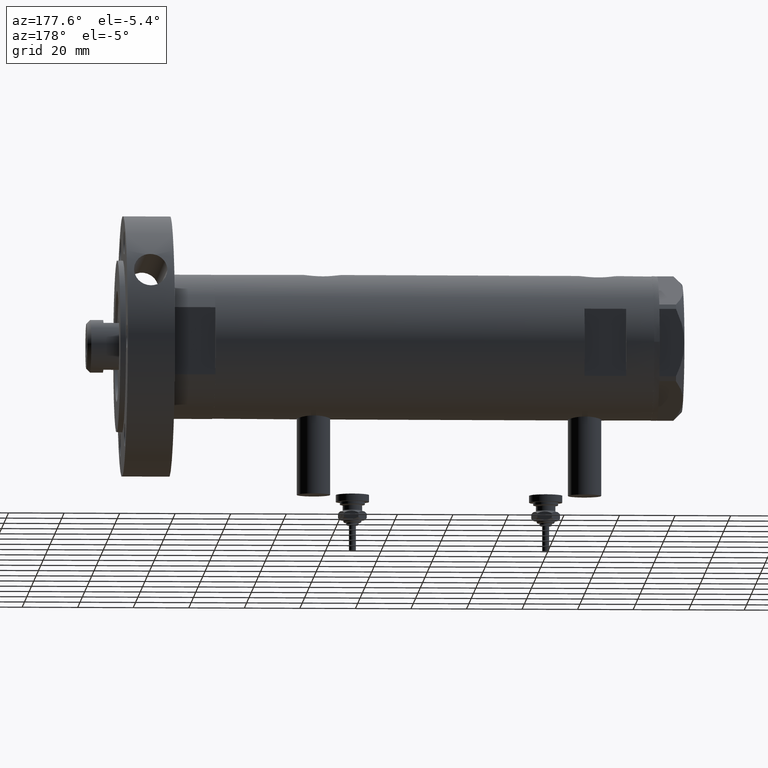
[diagram: clean part render]
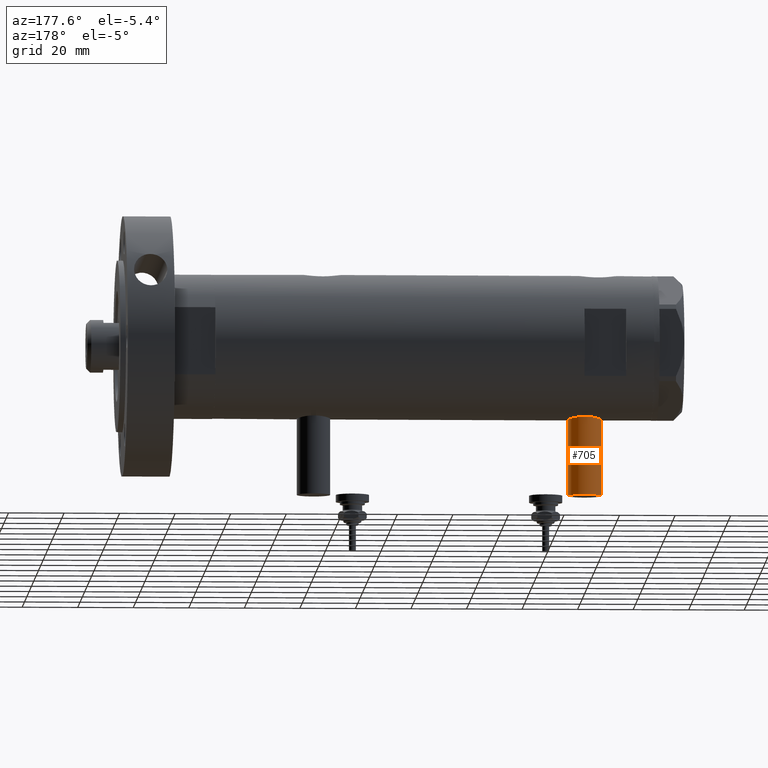
[diagram: same view with one face highlighted and labeled with its STEP entity id]
A machine part, auxiliary view. The second image highlights one B-rep face of the part: STEP entity #705.
In plain terms, the highlighted cylindrical surface (edge-blend (fillet) strip) has radius 6 mm, axis along (0, 0, 1).
Its self-contained STEP definition (entity closure, byte-faithful):
#286 = CARTESIAN_POINT ( 'NONE',  ( -53.40000000000000568, 0.000000000000000000, 48.95000000000000995 ) ) ;
#335 = VERTEX_POINT ( 'NONE', #5448 ) ;
#360 = CYLINDRICAL_SURFACE ( 'NONE', #5297, 5.999999999999998224 ) ;
#679 = CARTESIAN_POINT ( 'NONE',  ( -24.80000000000000426, 0.000000000000000000, 54.95000000000000284 ) ) ;
#705 = ADVANCED_FACE ( 'NONE', ( #5354 ), #360, .T. ) ;
#984 = DIRECTION ( 'NONE',  ( 1.000000000000000000, -0.000000000000000000, -0.000000000000000000 ) ) ;
#1064 = CARTESIAN_POINT ( 'NONE',  ( -53.40000000000000568, 0.000000000000000000, 48.95000000000000995 ) ) ;
#1437 = DIRECTION ( 'NONE',  ( -1.000000000000000000, 0.000000000000000000, 0.000000000000000000 ) ) ;
#1558 = DIRECTION ( 'NONE',  ( 1.000000000000000000, -0.000000000000000000, -0.000000000000000000 ) ) ;
#1568 = VERTEX_POINT ( 'NONE', #7670 ) ;
#1668 = AXIS2_PLACEMENT_3D ( 'NONE', #679, #1437, #3905 ) ;
#1734 = CIRCLE ( 'NONE', #5455, 5.999999999999998224 ) ;
#2001 = EDGE_CURVE ( 'NONE', #2393, #335, #2964, .T. ) ;
#2222 = DIRECTION ( 'NONE',  ( 1.000000000000000000, -0.000000000000000000, -0.000000000000000000 ) ) ;
#2253 = EDGE_CURVE ( 'NONE', #2334, #2393, #1734, .T. ) ;
#2334 = VERTEX_POINT ( 'NONE', #7681 ) ;
#2389 = CARTESIAN_POINT ( 'NONE',  ( -53.40000000000000568, 0.000000000000000000, 54.95000000000000284 ) ) ;
#2393 = VERTEX_POINT ( 'NONE', #286 ) ;
#2964 = LINE ( 'NONE', #1064, #4295 ) ;
#3044 = EDGE_CURVE ( 'NONE', #1568, #335, #7171, .T. ) ;
#3559 = ORIENTED_EDGE ( 'NONE', *, *, #2253, .F. ) ;
#3892 = ORIENTED_EDGE ( 'NONE', *, *, #3044, .T. ) ;
#3905 = DIRECTION ( 'NONE',  ( 0.000000000000000000, 0.000000000000000000, 1.000000000000000000 ) ) ;
#4153 = DIRECTION ( 'NONE',  ( 0.000000000000000000, 0.000000000000000000, -1.000000000000000000 ) ) ;
#4295 = VECTOR ( 'NONE', #984, 1000.000000000000000 ) ;
#4305 = ORIENTED_EDGE ( 'NONE', *, *, #2001, .F. ) ;
#4705 = ORIENTED_EDGE ( 'NONE', *, *, #4943, .T. ) ;
#4943 = EDGE_CURVE ( 'NONE', #2334, #1568, #5729, .T. ) ;
#5076 = DIRECTION ( 'NONE',  ( -1.000000000000000000, 0.000000000000000000, 0.000000000000000000 ) ) ;
#5224 = EDGE_LOOP ( 'NONE', ( #3559, #4705, #3892, #4305 ) ) ;
#5297 = AXIS2_PLACEMENT_3D ( 'NONE', #2389, #2222, #4153 ) ;
#5354 = FACE_OUTER_BOUND ( 'NONE', #5224, .T. ) ;
#5448 = CARTESIAN_POINT ( 'NONE',  ( -24.80000000000000426, 0.000000000000000000, 48.95000000000000995 ) ) ;
#5455 = AXIS2_PLACEMENT_3D ( 'NONE', #6962, #5076, #6360 ) ;
#5659 = VECTOR ( 'NONE', #1558, 1000.000000000000000 ) ;
#5729 = LINE ( 'NONE', #6779, #5659 ) ;
#6360 = DIRECTION ( 'NONE',  ( 0.000000000000000000, 0.000000000000000000, 1.000000000000000000 ) ) ;
#6779 = CARTESIAN_POINT ( 'NONE',  ( -53.40000000000000568, 7.347880794884112834E-16, 60.95000000000000284 ) ) ;
#6962 = CARTESIAN_POINT ( 'NONE',  ( -53.40000000000000568, 0.000000000000000000, 54.95000000000000284 ) ) ;
#7171 = CIRCLE ( 'NONE', #1668, 5.999999999999998224 ) ;
#7670 = CARTESIAN_POINT ( 'NONE',  ( -24.80000000000000426, 7.347880794884108889E-16, 60.95000000000000284 ) ) ;
#7681 = CARTESIAN_POINT ( 'NONE',  ( -53.40000000000000568, 7.347880794884108889E-16, 60.95000000000000284 ) ) ;